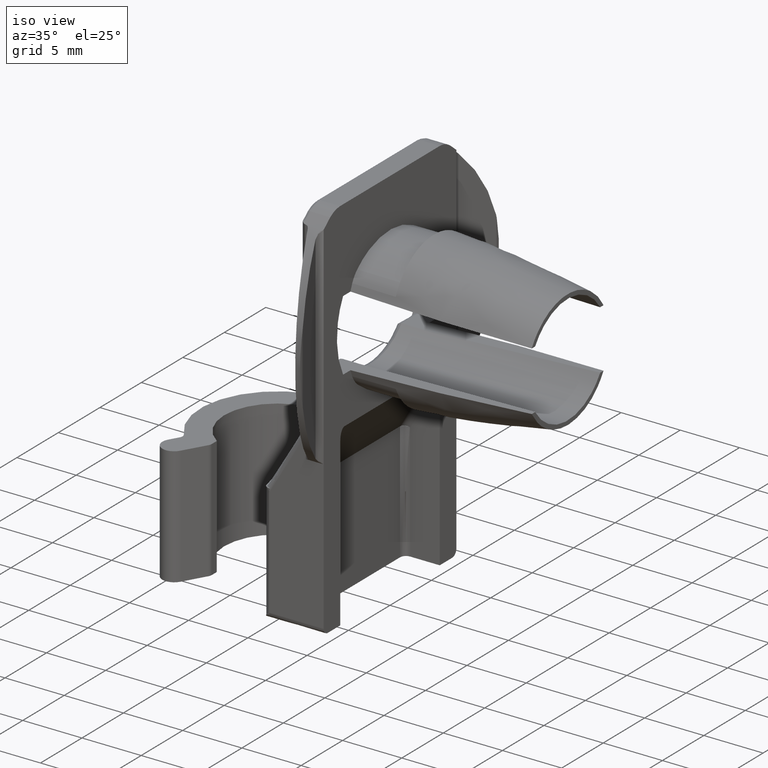
[diagram: clean part render]
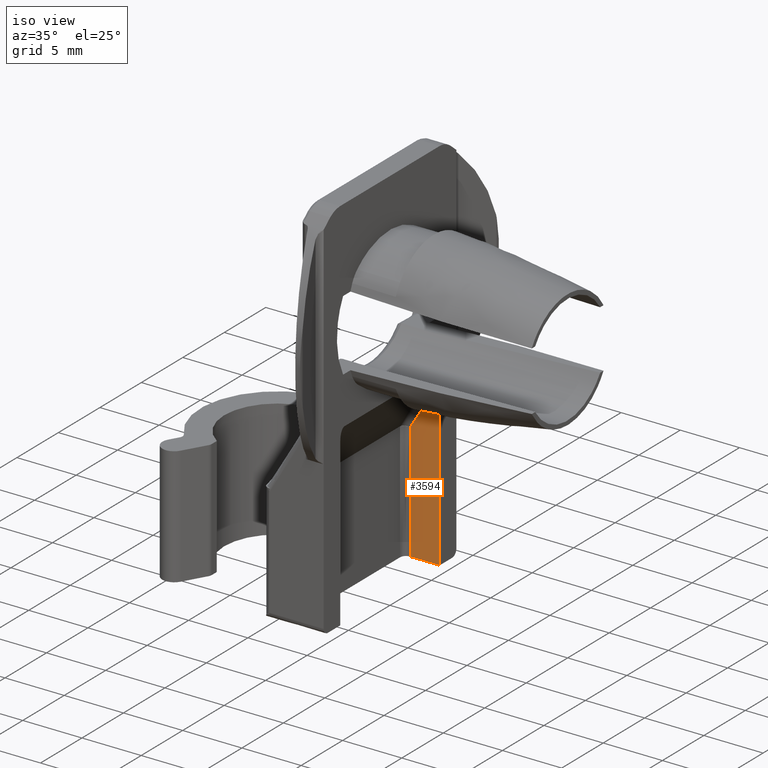
[diagram: same view with one face highlighted and labeled with its STEP entity id]
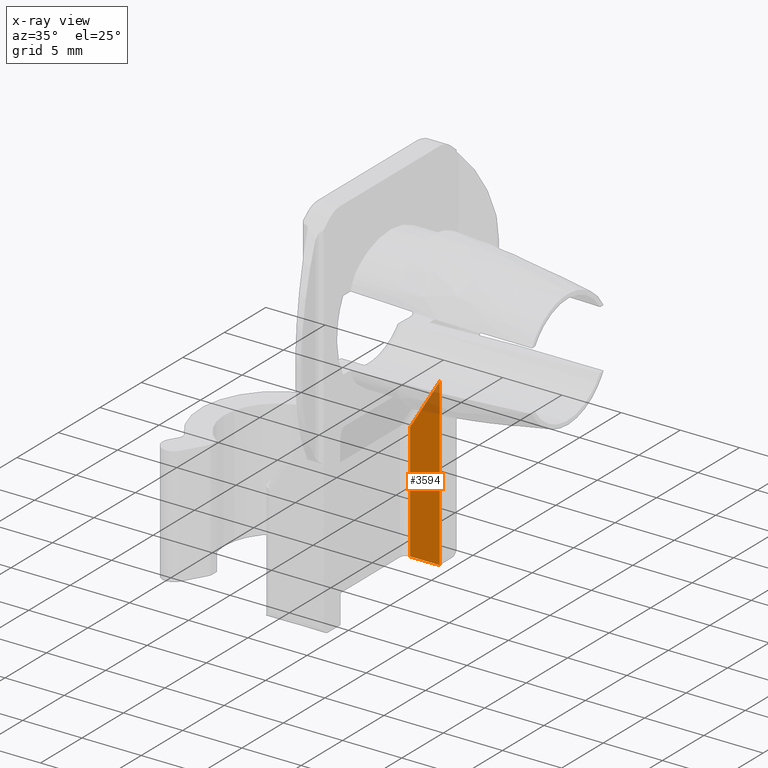
[diagram: x-ray of the same camera — body ghosted, the highlighted face saturated]
A machine part, iso view. The second image highlights one B-rep face of the part: STEP entity #3594.
The next image is the same camera in x-ray: the body ghosted, the highlighted face saturated — about 7% of this face is hidden behind the body in this view.
In plain terms, the highlighted face is a freeform B-spline surface patch.
Its self-contained STEP definition (entity closure, byte-faithful):
#2094=CARTESIAN_POINT('',(-2.499900999979745,6.000002000000000,-22.000000000004000));
#2095=VERTEX_POINT('',#2094);
#2109=CARTESIAN_POINT('',(-2.499900999979745,6.000002000000000,-12.138326895231900));
#2110=VERTEX_POINT('',#2109);
#2111=CARTESIAN_POINT('',(-2.499900999979745,6.000002000000000,-12.138326895231900));
#2112=CARTESIAN_POINT('',(-2.499900999979745,6.000002000000000,-22.000000000004000));
#2113=QUASI_UNIFORM_CURVE('',1,(#2111,#2112),.UNSPECIFIED.,.F.,.U.);
#2114=EDGE_CURVE('',#2110,#2095,#2113,.T.);
#2999=CARTESIAN_POINT('',(0.0,6.000002000000000,-7.971822173163501));
#3000=VERTEX_POINT('',#2999);
#3001=CARTESIAN_POINT('',(0.0,6.000002000000000,-7.971822173163501));
#3002=CARTESIAN_POINT('',(-2.499900999979745,6.000002000000000,-12.138326895231900));
#3003=QUASI_UNIFORM_CURVE('',1,(#3001,#3002),.UNSPECIFIED.,.F.,.U.);
#3004=EDGE_CURVE('',#3000,#2110,#3003,.T.);
#3345=CARTESIAN_POINT('',(0.0,6.000002000000000,-22.000000000004000));
#3346=VERTEX_POINT('',#3345);
#3352=CARTESIAN_POINT('',(-2.499900999979745,6.000002000000000,-22.000000000004000));
#3353=CARTESIAN_POINT('',(0.0,6.000002000000000,-22.000000000004000));
#3354=QUASI_UNIFORM_CURVE('',1,(#3352,#3353),.UNSPECIFIED.,.F.,.U.);
#3355=EDGE_CURVE('',#2095,#3346,#3354,.T.);
#3579=CARTESIAN_POINT('',(-2.624771120485286,6.000002000000000,-7.271114717902149));
#3580=CARTESIAN_POINT('',(-2.624771120485286,6.000002000000000,-22.700707831530408));
#3581=CARTESIAN_POINT('',(0.124870120505541,6.000002000000000,-7.271114717902149));
#3582=CARTESIAN_POINT('',(0.124870120505541,6.000002000000000,-22.700707831530408));
#3583=B_SPLINE_SURFACE_WITH_KNOTS('',1,1,((#3579,#3581),(#3580,#3582)),.UNSPECIFIED.,.F.,.F.,.U.,(2,2),(2,2),(0.0,15.429593113628259),(0.0,2.749641240990827),.UNSPECIFIED.);
#3584=ORIENTED_EDGE('',*,*,#3004,.T.);
#3585=ORIENTED_EDGE('',*,*,#2114,.T.);
#3586=ORIENTED_EDGE('',*,*,#3355,.T.);
#3587=CARTESIAN_POINT('',(0.0,6.000002000000000,-22.000000000004000));
#3588=CARTESIAN_POINT('',(0.0,6.000002000000000,-7.971822173163501));
#3589=QUASI_UNIFORM_CURVE('',1,(#3587,#3588),.UNSPECIFIED.,.F.,.U.);
#3590=EDGE_CURVE('',#3346,#3000,#3589,.T.);
#3591=ORIENTED_EDGE('',*,*,#3590,.T.);
#3592=EDGE_LOOP('',(#3584,#3585,#3586,#3591));
#3593=FACE_OUTER_BOUND('',#3592,.T.);
#3594=ADVANCED_FACE('',(#3593),#3583,.T.);